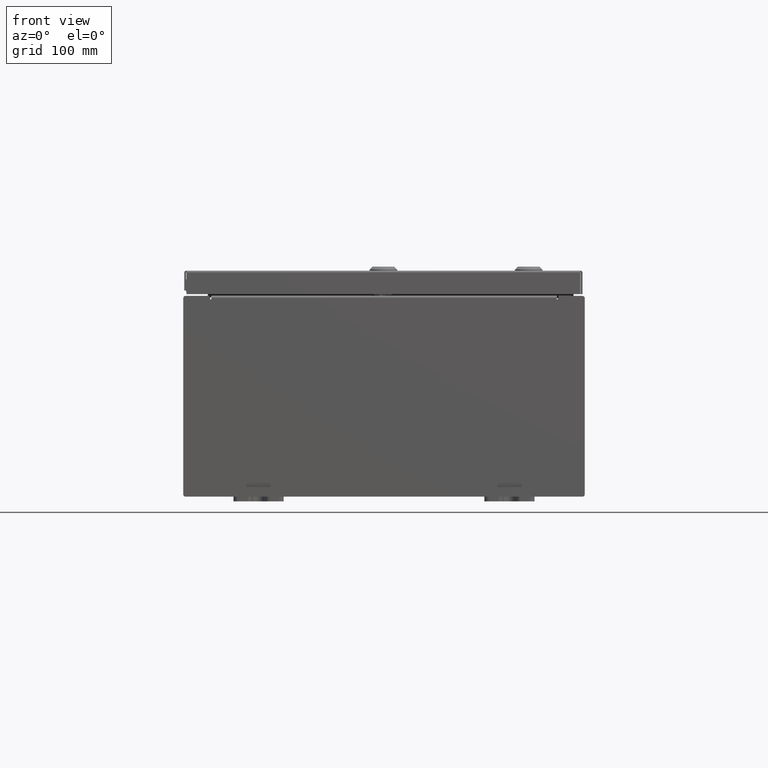
[diagram: clean part render]
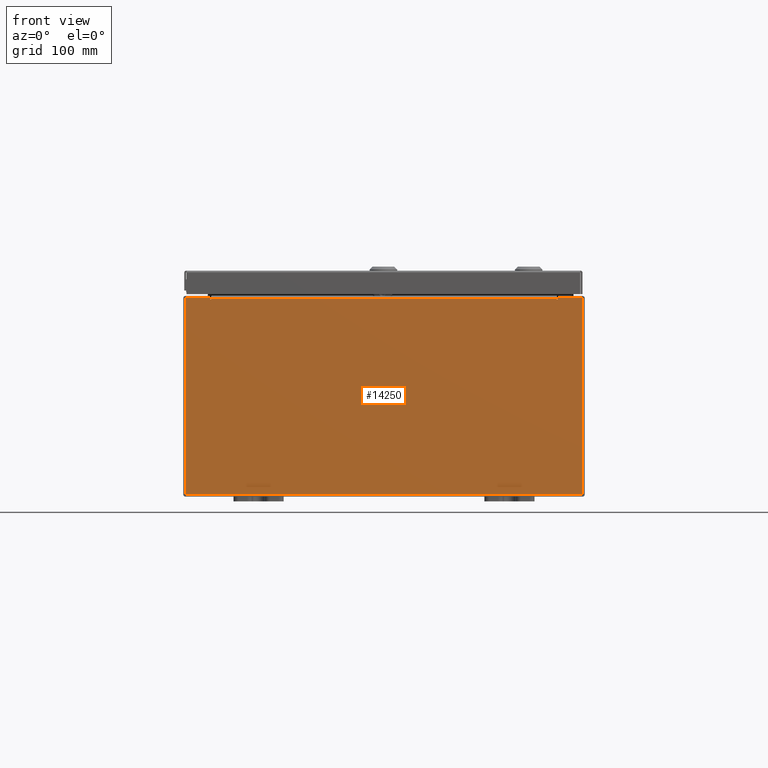
[diagram: same view with one face highlighted and labeled with its STEP entity id]
A machine part, front view. The second image highlights one B-rep face of the part: STEP entity #14250.
In plain terms, the highlighted planar face has unit normal (-0, 1, -0).
Its self-contained STEP definition (entity closure, byte-faithful):
#829 = CARTESIAN_POINT ( 'NONE',  ( 6.887199999999998200, 0.0000000000000000000, 3.874949999999999200 ) ) ;
#1501 = EDGE_CURVE ( 'NONE', #15720, #20593, #39302, .T. ) ;
#2139 = CARTESIAN_POINT ( 'NONE',  ( -6.905874999999998200, 0.0000000000000000000, 3.874949999999999200 ) ) ;
#2371 = ORIENTED_EDGE ( 'NONE', *, *, #16093, .T. ) ;
#2525 = DIRECTION ( 'NONE',  ( 0.0000000000000000000, -0.0000000000000000000, -1.000000000000000000 ) ) ;
#2919 = LINE ( 'NONE', #45410, #53209 ) ;
#3825 = AXIS2_PLACEMENT_3D ( 'NONE', #46179, #31690, #2525 ) ;
#5057 = VERTEX_POINT ( 'NONE', #32739 ) ;
#6445 = VERTEX_POINT ( 'NONE', #29402 ) ;
#6628 = CIRCLE ( 'NONE', #16702, 0.01867500000000003900 ) ;
#7037 = DIRECTION ( 'NONE',  ( 0.0000000000000000000, 0.0000000000000000000, -1.000000000000000000 ) ) ;
#7588 = VECTOR ( 'NONE', #42320, 39.37007874015748100 ) ;
#7736 = VECTOR ( 'NONE', #60351, 39.37007874015748100 ) ;
#8425 = VERTEX_POINT ( 'NONE', #37490 ) ;
#8531 = ORIENTED_EDGE ( 'NONE', *, *, #55030, .F. ) ;
#8694 = CARTESIAN_POINT ( 'NONE',  ( -7.925300000000000000, 0.0000000000000000000, 3.925299999999999100 ) ) ;
#8731 = VERTEX_POINT ( 'NONE', #829 ) ;
#10690 = LINE ( 'NONE', #61512, #46452 ) ;
#12826 = VERTEX_POINT ( 'NONE', #21668 ) ;
#14250 = ADVANCED_FACE ( 'NONE', ( #32083 ), #26792, .F. ) ;
#15720 = VERTEX_POINT ( 'NONE', #48809 ) ;
#15995 = EDGE_CURVE ( 'NONE', #8425, #12826, #10690, .T. ) ;
#16093 = EDGE_CURVE ( 'NONE', #6445, #23197, #59437, .T. ) ;
#16102 = DIRECTION ( 'NONE',  ( 0.0000000000000000000, 0.0000000000000000000, 1.000000000000000000 ) ) ;
#16702 = AXIS2_PLACEMENT_3D ( 'NONE', #2139, #36234, #7037 ) ;
#19023 = ORIENTED_EDGE ( 'NONE', *, *, #34709, .T. ) ;
#19097 = DIRECTION ( 'NONE',  ( -0.0000000000000000000, 1.000000000000000000, -0.0000000000000000000 ) ) ;
#19155 = EDGE_CURVE ( 'NONE', #12826, #8731, #41056, .T. ) ;
#19395 = CARTESIAN_POINT ( 'NONE',  ( -7.925300000000000000, 0.0000000000000000000, 3.925299999999999100 ) ) ;
#19410 = ORIENTED_EDGE ( 'NONE', *, *, #28601, .T. ) ;
#20593 = VERTEX_POINT ( 'NONE', #48457 ) ;
#20699 = LINE ( 'NONE', #35526, #7736 ) ;
#21668 = CARTESIAN_POINT ( 'NONE',  ( 6.924550000000000000, 0.0000000000000000000, 3.874949999999999200 ) ) ;
#21867 = VECTOR ( 'NONE', #16102, 39.37007874015748100 ) ;
#22910 = VECTOR ( 'NONE', #29958, 39.37007874015748100 ) ;
#23197 = VERTEX_POINT ( 'NONE', #59671 ) ;
#24295 = DIRECTION ( 'NONE',  ( 1.000000000000000000, 0.0000000000000000000, 0.0000000000000000000 ) ) ;
#24761 = VECTOR ( 'NONE', #54468, 39.37007874015748100 ) ;
#25020 = CARTESIAN_POINT ( 'NONE',  ( 6.887200000000000000, 0.0000000000000000000, 0.0000000000000000000 ) ) ;
#25259 = CARTESIAN_POINT ( 'NONE',  ( -6.887200000000000000, -1.707404996040164500E-016, 3.912299999999999200 ) ) ;
#26741 = ORIENTED_EDGE ( 'NONE', *, *, #33082, .F. ) ;
#26792 = PLANE ( 'NONE',  #3825 ) ;
#26998 = ORIENTED_EDGE ( 'NONE', *, *, #57823, .T. ) ;
#27497 = EDGE_CURVE ( 'NONE', #15720, #31307, #20699, .T. ) ;
#28601 = EDGE_CURVE ( 'NONE', #8425, #6445, #51798, .T. ) ;
#29402 = CARTESIAN_POINT ( 'NONE',  ( 7.925300000000000000, 0.0000000000000000000, 3.925299999999999100 ) ) ;
#29958 = DIRECTION ( 'NONE',  ( 0.0000000000000000000, 0.0000000000000000000, 1.000000000000000000 ) ) ;
#30211 = ORIENTED_EDGE ( 'NONE', *, *, #15995, .F. ) ;
#30648 = LINE ( 'NONE', #19395, #55044 ) ;
#31307 = VERTEX_POINT ( 'NONE', #42313 ) ;
#31690 = DIRECTION ( 'NONE',  ( 0.0000000000000000000, -1.000000000000000000, 0.0000000000000000000 ) ) ;
#32083 = FACE_OUTER_BOUND ( 'NONE', #44420, .T. ) ;
#32498 = EDGE_CURVE ( 'NONE', #36422, #49889, #60767, .T. ) ;
#32539 = ORIENTED_EDGE ( 'NONE', *, *, #43514, .T. ) ;
#32739 = CARTESIAN_POINT ( 'NONE',  ( -7.925300000000000000, 0.0000000000000000000, -3.925300000000000500 ) ) ;
#33082 = EDGE_CURVE ( 'NONE', #31307, #36422, #6628, .T. ) ;
#34311 = ORIENTED_EDGE ( 'NONE', *, *, #1501, .T. ) ;
#34709 = EDGE_CURVE ( 'NONE', #5057, #45800, #54550, .T. ) ;
#35526 = CARTESIAN_POINT ( 'NONE',  ( -6.887199999999998200, -0.0000000000000000000, 0.0000000000000000000 ) ) ;
#35909 = LINE ( 'NONE', #25020, #22910 ) ;
#36234 = DIRECTION ( 'NONE',  ( -0.0000000000000000000, 1.000000000000000000, -0.0000000000000000000 ) ) ;
#36422 = VERTEX_POINT ( 'NONE', #58611 ) ;
#37458 = CARTESIAN_POINT ( 'NONE',  ( 7.925300000000000000, 0.0000000000000000000, 3.925299999999999100 ) ) ;
#37490 = CARTESIAN_POINT ( 'NONE',  ( 6.924550000000000000, 0.0000000000000000000, 3.925299999999999100 ) ) ;
#37845 = CARTESIAN_POINT ( 'NONE',  ( -6.924549999999999100, 0.0000000000000000000, 3.925299999999999100 ) ) ;
#38875 = VECTOR ( 'NONE', #58811, 39.37007874015748100 ) ;
#39302 = LINE ( 'NONE', #25259, #24761 ) ;
#41056 = CIRCLE ( 'NONE', #44799, 0.01867500000000003900 ) ;
#42313 = CARTESIAN_POINT ( 'NONE',  ( -6.887199999999998200, -0.0000000000000000000, 3.874949999999999200 ) ) ;
#42320 = DIRECTION ( 'NONE',  ( 0.0000000000000000000, 0.0000000000000000000, -1.000000000000000000 ) ) ;
#43514 = EDGE_CURVE ( 'NONE', #23197, #5057, #2919, .T. ) ;
#44099 = CARTESIAN_POINT ( 'NONE',  ( -7.925300000000000000, 0.0000000000000000000, 3.925299999999999100 ) ) ;
#44420 = EDGE_LOOP ( 'NONE', ( #53759, #26741, #55954, #34311, #8531, #62978, #30211, #19410, #2371, #32539, #19023, #26998 ) ) ;
#44799 = AXIS2_PLACEMENT_3D ( 'NONE', #48303, #19097, #53193 ) ;
#45410 = CARTESIAN_POINT ( 'NONE',  ( -7.925300000000000000, 0.0000000000000000000, -3.925300000000000500 ) ) ;
#45497 = CARTESIAN_POINT ( 'NONE',  ( -6.924549999999999100, -0.0000000000000000000, 0.0000000000000000000 ) ) ;
#45800 = VERTEX_POINT ( 'NONE', #8694 ) ;
#46179 = CARTESIAN_POINT ( 'NONE',  ( 0.0000000000000000000, 0.0000000000000000000, 0.0000000000000000000 ) ) ;
#46452 = VECTOR ( 'NONE', #51466, 39.37007874015748100 ) ;
#48303 = CARTESIAN_POINT ( 'NONE',  ( 6.905874999999999100, 0.0000000000000000000, 3.874949999999999200 ) ) ;
#48457 = CARTESIAN_POINT ( 'NONE',  ( 6.887200000000000000, 0.0000000000000000000, 3.912299999999999200 ) ) ;
#48809 = CARTESIAN_POINT ( 'NONE',  ( -6.887199999999998200, -1.707404996040164500E-016, 3.912299999999999200 ) ) ;
#49889 = VERTEX_POINT ( 'NONE', #37845 ) ;
#51347 = CARTESIAN_POINT ( 'NONE',  ( -7.925300000000000000, 0.0000000000000000000, 3.925299999999999100 ) ) ;
#51466 = DIRECTION ( 'NONE',  ( -4.340572780400004900E-014, 0.0000000000000000000, -1.000000000000000000 ) ) ;
#51798 = LINE ( 'NONE', #44099, #38875 ) ;
#53193 = DIRECTION ( 'NONE',  ( 0.0000000000000000000, 0.0000000000000000000, -1.000000000000000000 ) ) ;
#53209 = VECTOR ( 'NONE', #59908, 39.37007874015748100 ) ;
#53759 = ORIENTED_EDGE ( 'NONE', *, *, #32498, .F. ) ;
#54468 = DIRECTION ( 'NONE',  ( 1.000000000000000000, 0.0000000000000000000, 0.0000000000000000000 ) ) ;
#54550 = LINE ( 'NONE', #51347, #56044 ) ;
#55030 = EDGE_CURVE ( 'NONE', #8731, #20593, #35909, .T. ) ;
#55044 = VECTOR ( 'NONE', #24295, 39.37007874015748100 ) ;
#55954 = ORIENTED_EDGE ( 'NONE', *, *, #27497, .F. ) ;
#56044 = VECTOR ( 'NONE', #56276, 39.37007874015748100 ) ;
#56276 = DIRECTION ( 'NONE',  ( -0.0000000000000000000, -0.0000000000000000000, 1.000000000000000000 ) ) ;
#57823 = EDGE_CURVE ( 'NONE', #45800, #49889, #30648, .T. ) ;
#58611 = CARTESIAN_POINT ( 'NONE',  ( -6.924549999999997300, 0.0000000000000000000, 3.874949999999999200 ) ) ;
#58811 = DIRECTION ( 'NONE',  ( 1.000000000000000000, 0.0000000000000000000, 0.0000000000000000000 ) ) ;
#59437 = LINE ( 'NONE', #37458, #7588 ) ;
#59671 = CARTESIAN_POINT ( 'NONE',  ( 7.925300000000000000, 0.0000000000000000000, -3.925300000000000500 ) ) ;
#59908 = DIRECTION ( 'NONE',  ( -1.000000000000000000, -0.0000000000000000000, -0.0000000000000000000 ) ) ;
#60351 = DIRECTION ( 'NONE',  ( 0.0000000000000000000, 0.0000000000000000000, -1.000000000000000000 ) ) ;
#60767 = LINE ( 'NONE', #45497, #21867 ) ;
#61512 = CARTESIAN_POINT ( 'NONE',  ( 6.924549999999831200, -0.0000000000000000000, -3.005651324651812500E-013 ) ) ;
#62978 = ORIENTED_EDGE ( 'NONE', *, *, #19155, .F. ) ;